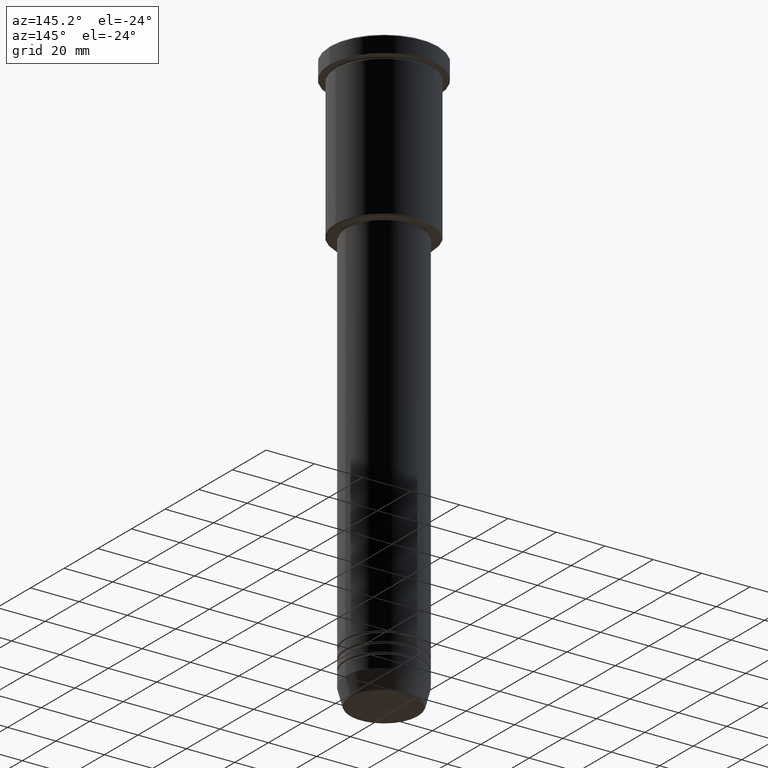
[diagram: clean part render]
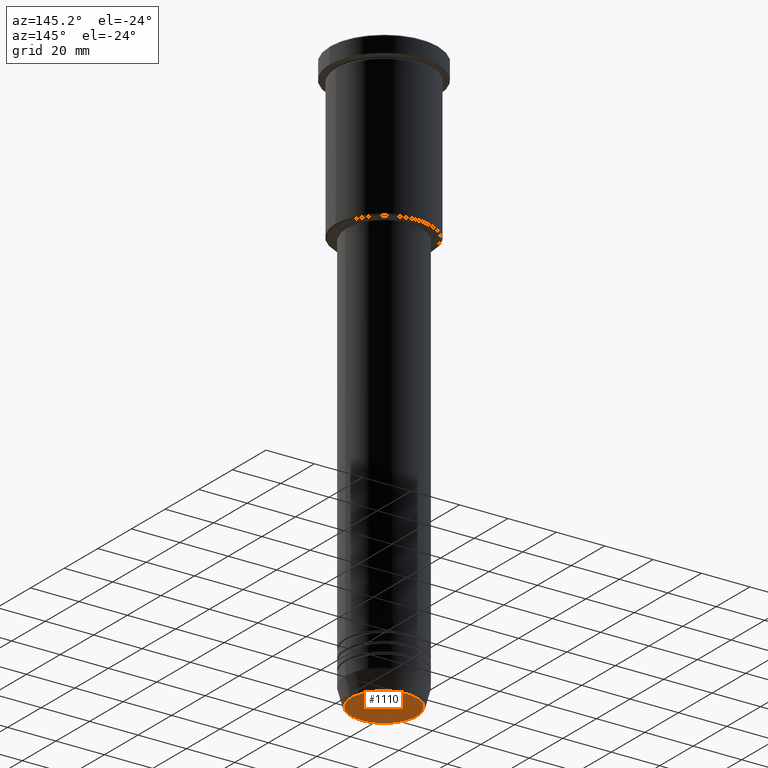
[diagram: same view with one face highlighted and labeled with its STEP entity id]
A machine part, auxiliary view. The second image highlights one B-rep face of the part: STEP entity #1110.
In plain terms, the highlighted planar face has unit normal (0, -0, 1).
Its self-contained STEP definition (entity closure, byte-faithful):
#41 = ORIENTED_EDGE ( 'NONE', *, *, #366, .T. ) ;
#222 = DIRECTION ( 'NONE',  ( 1.000000000000000000, 0.000000000000000000, 0.000000000000000000 ) ) ;
#262 = CIRCLE ( 'NONE', #1138, 13.60671756277710109 ) ;
#294 = VERTEX_POINT ( 'NONE', #890 ) ;
#322 = DIRECTION ( 'NONE',  ( 0.000000000000000000, -0.000000000000000000, 1.000000000000000000 ) ) ;
#330 = FACE_OUTER_BOUND ( 'NONE', #809, .T. ) ;
#332 = AXIS2_PLACEMENT_3D ( 'NONE', #336, #697, #222 ) ;
#336 = CARTESIAN_POINT ( 'NONE',  ( 0.000000000000000000, 0.000000000000000000, -240.0000000000000000 ) ) ;
#366 = EDGE_CURVE ( 'NONE', #530, #294, #262, .T. ) ;
#387 = ORIENTED_EDGE ( 'NONE', *, *, #593, .T. ) ;
#439 = AXIS2_PLACEMENT_3D ( 'NONE', #504, #322, #860 ) ;
#476 = CARTESIAN_POINT ( 'NONE',  ( 0.000000000000000000, 0.000000000000000000, -240.0000000000000000 ) ) ;
#504 = CARTESIAN_POINT ( 'NONE',  ( 0.000000000000000000, 0.000000000000000000, -240.0000000000000000 ) ) ;
#530 = VERTEX_POINT ( 'NONE', #1147 ) ;
#593 = EDGE_CURVE ( 'NONE', #294, #530, #599, .T. ) ;
#599 = CIRCLE ( 'NONE', #332, 13.60671756277710109 ) ;
#697 = DIRECTION ( 'NONE',  ( 0.000000000000000000, 0.000000000000000000, -1.000000000000000000 ) ) ;
#746 = DIRECTION ( 'NONE',  ( 0.000000000000000000, 0.000000000000000000, -1.000000000000000000 ) ) ;
#809 = EDGE_LOOP ( 'NONE', ( #387, #41 ) ) ;
#860 = DIRECTION ( 'NONE',  ( 1.000000000000000000, 0.000000000000000000, 0.000000000000000000 ) ) ;
#890 = CARTESIAN_POINT ( 'NONE',  ( 13.60671756277710109, 0.000000000000000000, -240.0000000000000000 ) ) ;
#934 = PLANE ( 'NONE',  #439 ) ;
#1110 = ADVANCED_FACE ( 'NONE', ( #330 ), #934, .F. ) ;
#1138 = AXIS2_PLACEMENT_3D ( 'NONE', #476, #746, #1165 ) ;
#1147 = CARTESIAN_POINT ( 'NONE',  ( -13.60671756277710109, 1.695915260300172047E-15, -240.0000000000000000 ) ) ;
#1165 = DIRECTION ( 'NONE',  ( 1.000000000000000000, 0.000000000000000000, 0.000000000000000000 ) ) ;